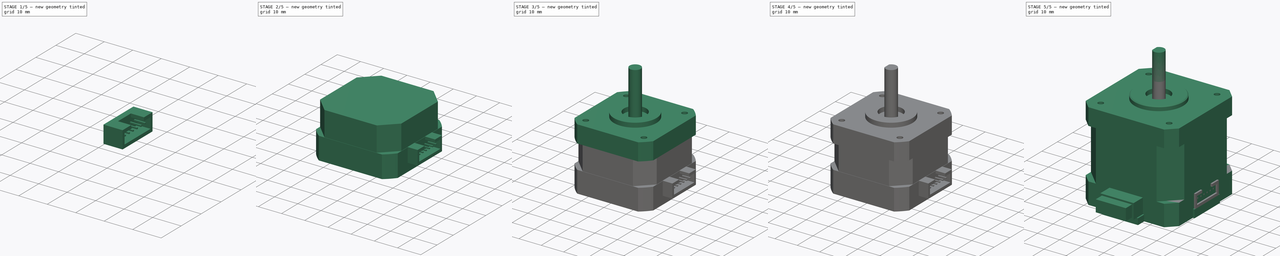
[diagram: build sequence overview — one tinted view per stage of 5, left to right]
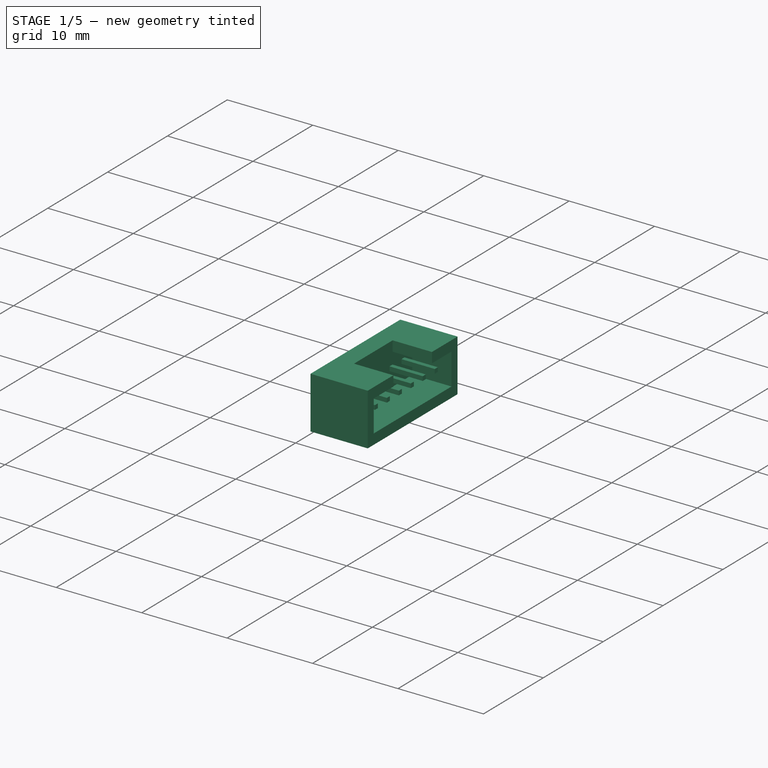
[diagram: stage 1 of 5 — iso view after this stage's code; geometry added in this stage tinted green]
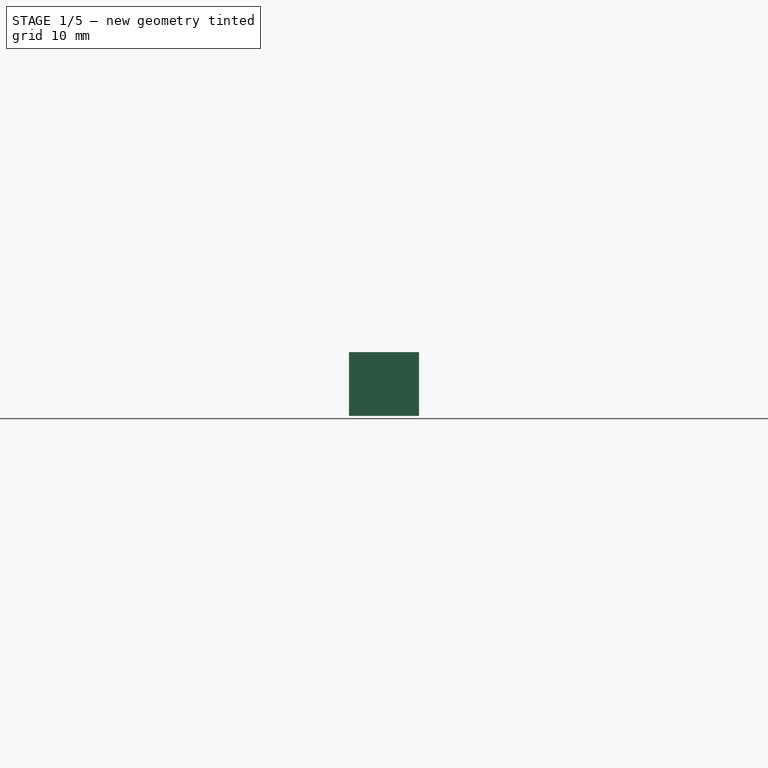
[diagram: stage 1 of 5 — front view after this stage's code; geometry added in this stage tinted green]
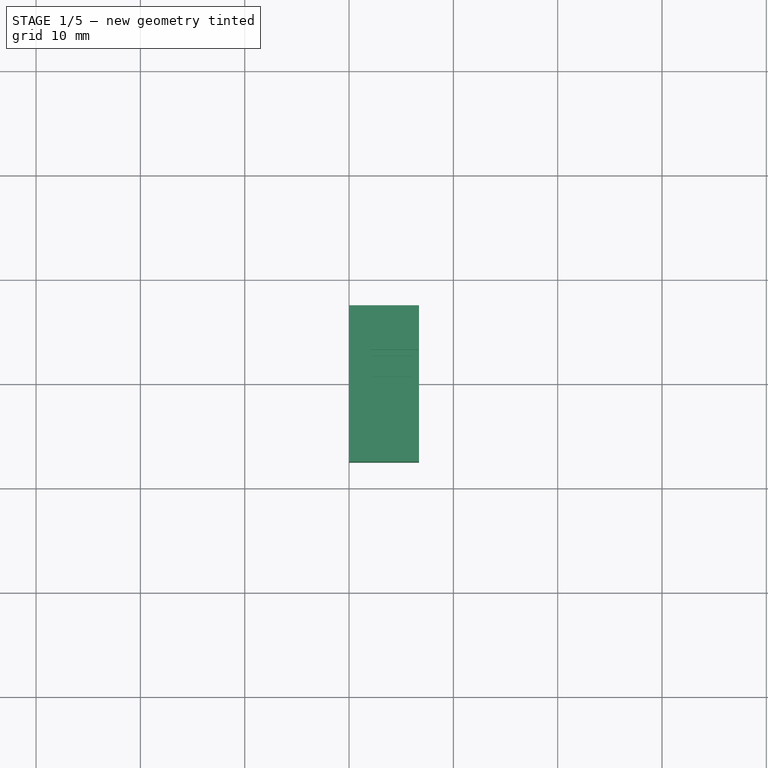
[diagram: stage 1 of 5 — top view after this stage's code; geometry added in this stage tinted green]
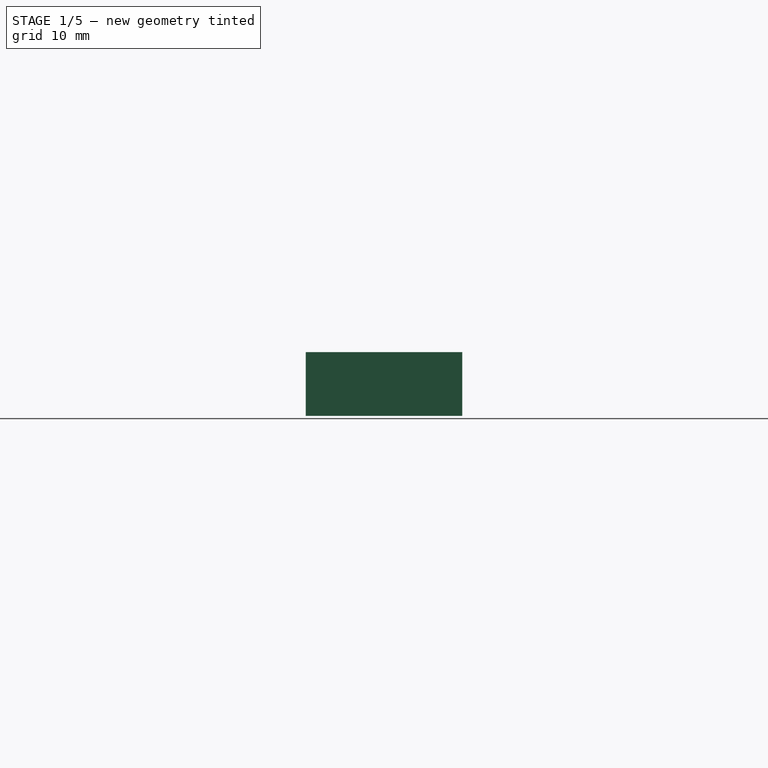
[diagram: stage 1 of 5 — right view after this stage's code; geometry added in this stage tinted green]
FCSTD DOCUMENT  (FreeCAD 0.16R6712 (Git))
Label: NEMA-14_Stepper_Motor_28mm_with_Connector 
License: CreativeCommons Attribution-ShareAlike
LicenseURL: http://creativecommons.org/licenses/by-sa/4.0/
objects: Sketcher::SketchObject×12, PartDesign::Pad×7, PartDesign::Pocket×5, Part::MultiFuse×2, Part::Compound×1, Part::Chamfer×1, Part::Box×1, Part::FeaturePython×1, App::DocumentObjectGroup×1, Part::Feature×1
note: 43 computed .brp shape members not serialized (recipe doc carries the construction recipe); baked Part::Feature solids carry a one-line shape summary decoded from their .brp

FEATURE [Sketcher::SketchObject] Sketch010  label="connector-main-body-sketch"
  Placement = pos=(0,0,0) rot=(0.57735,0.57735,0.57735;2.0944rad)
  sketch-geometry (4):
    g0: LineSegment StartX=-7.5 StartY=3.05 StartZ=0 EndX=7.5 EndY=3.05 EndZ=0
    g1: LineSegment StartX=7.5 StartY=3.05 StartZ=0 EndX=7.5 EndY=-3.05 EndZ=0
    g2: LineSegment StartX=7.5 StartY=-3.05 StartZ=0 EndX=-7.5 EndY=-3.05 EndZ=0
    g3: LineSegment StartX=-7.5 StartY=-3.05 StartZ=0 EndX=-7.5 EndY=3.05 EndZ=0
  constraints (11):
    c: Coincident(g0,g1)
    c: Coincident(g1,g2)
    c: Coincident(g2,g3)
    c: Coincident(g3,g0)
    c: Horizontal(g0)
    c: Horizontal(g2)
    c: Vertical(g1)
    c: Vertical(g3)
    c: Symmetric(g0,g1,g-1)
    c: DistanceX(g0) = 15
    c: DistanceY(g1) = -6.1
FEATURE [PartDesign::Pad] Pad006  label="connector-main-body"
  Length = 6.7
  Length2 = 100
  Placement = pos=(0,0,0) rot=(0.57735,0.57735,0.57735;2.0944rad)
  Sketch = -> Sketch010
  Type = 0
FEATURE [Sketcher::SketchObject] Sketch011  label="connector-cutout-1-sketch"
  Placement = pos=(6.7,0,0) rot=(0.57735,0.57735,0.57735;2.0944rad)
  Support = -> Pad006 [Face6]
  sketch-geometry (8):
    g0: LineSegment StartX=-6.5 StartY=1.85 StartZ=0 EndX=-3.22738 EndY=1.85 EndZ=0
    g1: LineSegment StartX=6.5 StartY=1.85 StartZ=0 EndX=6.5 EndY=-1.85 EndZ=0
    g2: LineSegment StartX=6.5 StartY=-1.85 StartZ=0 EndX=-6.5 EndY=-1.85 EndZ=0
    g3: LineSegment StartX=-6.5 StartY=-1.85 StartZ=0 EndX=-6.5 EndY=1.85 EndZ=0
    g4: LineSegment StartX=-3.22738 StartY=1.85 StartZ=0 EndX=-3.22738 EndY=3.85 EndZ=0
    g5: LineSegment StartX=-3.22738 StartY=3.85 StartZ=0 EndX=3.22738 EndY=3.85 EndZ=0
    g6: LineSegment StartX=3.22738 StartY=3.85 StartZ=0 EndX=3.22738 EndY=1.85 EndZ=0
    g7: LineSegment StartX=3.22738 StartY=1.85 StartZ=0 EndX=6.5 EndY=1.85 EndZ=0
  constraints (21):
    c: Coincident(g7,g1)
    c: Coincident(g1,g2)
    c: Coincident(g2,g3)
    c: Coincident(g3,g0)
    c: Horizontal(g0)
    c: Horizontal(g2)
    c: Vertical(g1)
    c: Vertical(g3)
    c: Symmetric(g0,g1,g-1)
    c: DistanceX(g2) = -13
    c: DistanceY(g1) = -3.7
    c: Vertical(g4)
    c: Coincident(g4,g5)
    c: Horizontal(g5)
    c: Coincident(g5,g6)
    c: Vertical(g6)
    c: Symmetric(g4,g5,g-2)
    c: Coincident(g0,g4)
    c: Coincident(g7,g6)
    c: Tangent(g0,g7)
    c: DistanceY(g6) = -2
FEATURE [PartDesign::Pocket] Pocket004  label="connector-cutout-1"
  Length = 4.6
  Placement = pos=(0,0,0) rot=(0.57735,0.57735,0.57735;2.0944rad)
  Sketch = -> Sketch011
  Type = 0
FEATURE [Part::Box] Box  label="pin-master"
  Height = 0.5
  Length = 4
  Width = 0.5
FEATURE [Part::FeaturePython] Array  label="pins"  # Draft array (typed FeaturePython)
  Angle = 360
  ArrayType = 0
  Axis = (0,0,1)
  Base = -> Box
  Center = (0,0,0)
  IntervalX = (1,0,0)
  IntervalY = (0,2,0)
  IntervalZ = (0,0,1)
  NumberPolar = 1
  NumberX = 1
  NumberY = 6
  NumberZ = 1
  Placement = pos=(2,-5.3,0) rot=(0,0,1;0rad)
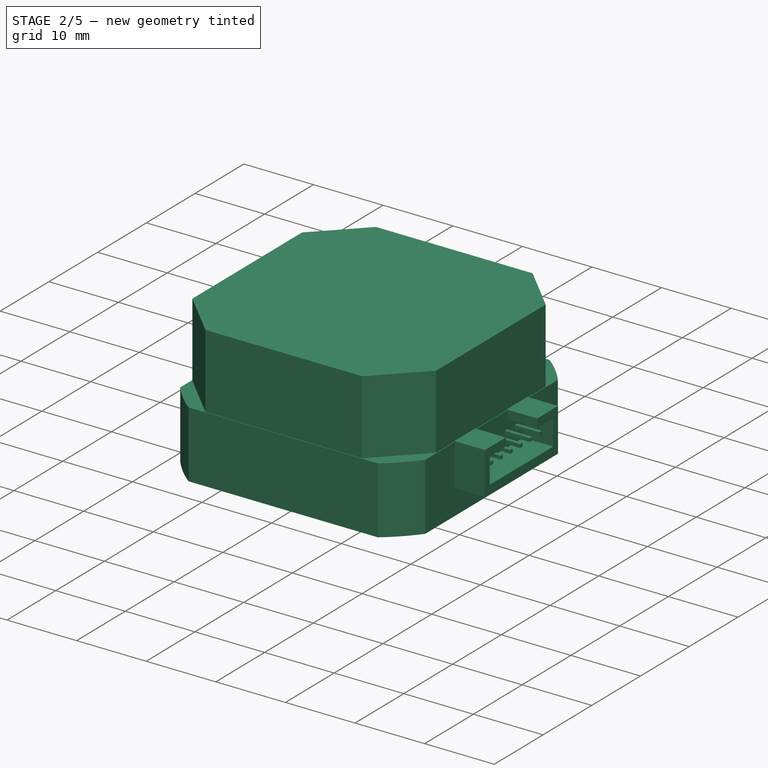
[diagram: stage 2 of 5 — iso view after this stage's code; geometry added in this stage tinted green]
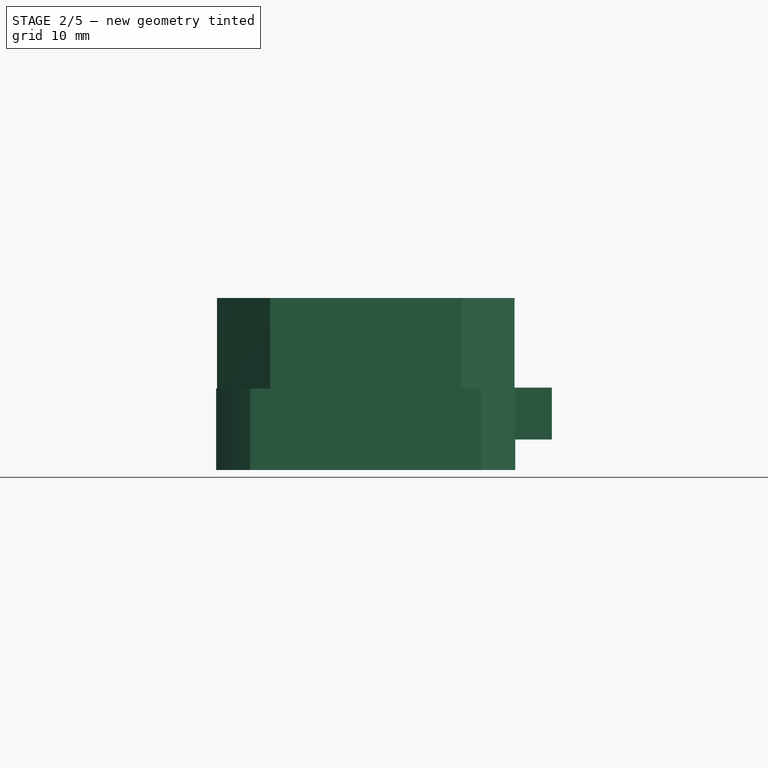
[diagram: stage 2 of 5 — front view after this stage's code; geometry added in this stage tinted green]
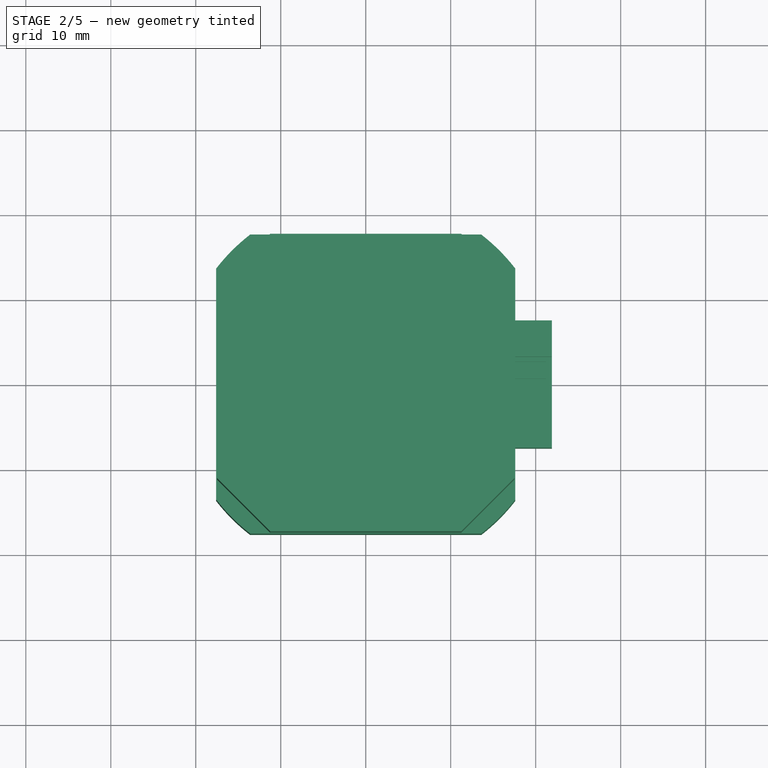
[diagram: stage 2 of 5 — top view after this stage's code; geometry added in this stage tinted green]
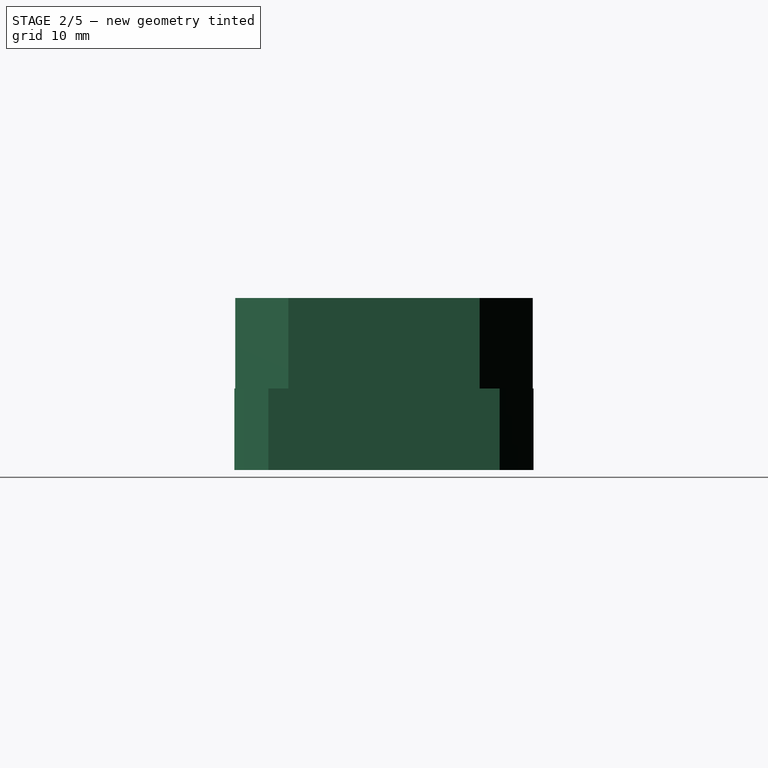
[diagram: stage 2 of 5 — right view after this stage's code; geometry added in this stage tinted green]
FEATURE [Sketcher::SketchObject] Sketch  label="bottom-part-sketch"
  sketch-geometry (8):
    g0: LineSegment StartX=-13.6 StartY=-17.6 StartZ=0 EndX=13.6 EndY=-17.6 EndZ=0
    g1: LineSegment StartX=17.6 StartY=-13.6 StartZ=0 EndX=17.6 EndY=13.6 EndZ=0
    g2: LineSegment StartX=13.6 StartY=17.6 StartZ=0 EndX=-13.6 EndY=17.6 EndZ=0
    g3: LineSegment StartX=-17.6 StartY=13.6 StartZ=0 EndX=-17.6 EndY=-13.6 EndZ=0
    g4: ArcOfCircle CenterX=0 CenterY=0 CenterZ=0 NormalX=0 NormalY=0 NormalZ=1 Radius=22.2423 StartAngle=2.22868 EndAngle=2.4837
    g5: ArcOfCircle CenterX=0 CenterY=0 CenterZ=0 NormalX=0 NormalY=0 NormalZ=1 Radius=22.2423 StartAngle=3.79948 EndAngle=4.0545
    g6: ArcOfCircle CenterX=0 CenterY=0 CenterZ=0 NormalX=0 NormalY=0 NormalZ=1 Radius=22.2423 StartAngle=5.37028 EndAngle=5.6253
    g7: ArcOfCircle CenterX=0 CenterY=0 CenterZ=0 NormalX=0 NormalY=0 NormalZ=1 Radius=22.2423 StartAngle=0.657889 EndAngle=0.912908
  constraints (29):
    c: Horizontal(g0)
    c: Horizontal(g2)
    c: Vertical(g1)
    c: Vertical(g3)
    c: PointOnObject(g0,g4)
    c: PointOnObject(g0,g4)
    c: PointOnObject(g1,g4)
    c: PointOnObject(g1,g4)
    c: Coincident(g4,g2)
    c: Coincident(g7,g2)
    c: Equal(g4,g5)
    c: Coincident(g4,g3)
    c: Coincident(g5,g3)
    c: Coincident(g4,g5)
    c: Equal(g5,g6)
    c: PointOnObject(g5,g0)
    c: PointOnObject(g6,g0)
    c: Coincident(g5,g6)
    c: Equal(g6,g7)
    c: PointOnObject(g6,g1)
    c: PointOnObject(g7,g1)
    c: Coincident(g6,g7)
    c: Equal(g3,g2)
    c: Equal(g2,g1)
    c: Equal(g1,g0)
    c: DistanceX(g3,g1) = 35.2
    c: DistanceX(g2) = -27.2
    c: DistanceY(g2) = 17.6
    c: DistanceX(g1) = 17.6
FEATURE [PartDesign::Pad] Pad  label="bottom-slice"
  Length = 9.6
  Length2 = 100
  Sketch = -> Sketch
  Type = 0
FEATURE [Sketcher::SketchObject] Sketch001  label="middle-part-sketch"
  ExternalGeometry = -> [Pad]
  Placement = pos=(0,0,9.6) rot=(0,0,1;0rad)
  Support = -> Pad [Face10]
  sketch-geometry (9):
    g0: LineSegment StartX=-17.5 StartY=-11.25 StartZ=0 EndX=-17.5 EndY=11.25 EndZ=0
    g1: LineSegment StartX=-17.5 StartY=11.25 StartZ=0 EndX=-11.25 EndY=17.5 EndZ=0
    g2: LineSegment StartX=-11.25 StartY=17.5 StartZ=0 EndX=11.25 EndY=17.5 EndZ=0
    g3: LineSegment [constr] StartX=-17.5 StartY=11.25 StartZ=0 EndX=-5.5 EndY=11.25 EndZ=0
    g4: LineSegment StartX=11.25 StartY=17.5 StartZ=0 EndX=17.5 EndY=11.25 EndZ=0
    g5: LineSegment StartX=17.5 StartY=11.25 StartZ=0 EndX=17.5 EndY=-11.25 EndZ=0
    g6: LineSegment StartX=17.5 StartY=-11.25 StartZ=0 EndX=11.25 EndY=-17.5 EndZ=0
    g7: LineSegment StartX=11.25 StartY=-17.5 StartZ=0 EndX=-11.25 EndY=-17.5 EndZ=0
    g8: LineSegment StartX=-11.25 StartY=-17.5 StartZ=0 EndX=-17.5 EndY=-11.25 EndZ=0
  constraints (24):
    c: Coincident(g0,g1)
    c: Coincident(g1,g2)
    c: Horizontal(g2)
    c: Symmetric(g0,g0,g-1)
    c: Symmetric(g1,g2,g-2)
    c: Horizontal(g3)
    c: Coincident(g3,g0)
    c: DistanceX(g3) = 12
    c: Angle(g3,g1) = 0.785398
    c: DistanceY(g0) = 22.5
    c: Coincident(g4,g5)
    c: Vertical(g5)
    c: Coincident(g5,g6)
    c: Coincident(g6,g7)
    c: Horizontal(g7)
    c: Coincident(g7,g8)
    c: Coincident(g8,g0)
    c: Symmetric(g1,g7,g-1)
    c: Coincident(g4,g2)
    c: Symmetric(g4,g0,g-2)
    c: Symmetric(g0,g5,g-2)
    c: Symmetric(g6,g7,g-2)
    c: DistanceX(g-1,g0) = -17.5
    c: Equal(g0,g2)
FEATURE [PartDesign::Pad] Pad001  label="middle-slice"
  Length = 10.65
  Length2 = 100
  Sketch = -> Sketch001
  Type = 0
FEATURE [App::DocumentObjectGroup] Group  label="connector-src"
  Group = -> [Pad006,Pocket004,Array]
FEATURE [Part::MultiFuse] Fusion  label="connector"
  Placement = pos=(15.2,0,6.65) rot=(0,0,1;0rad)
  Shapes = -> [Pocket004,Array]
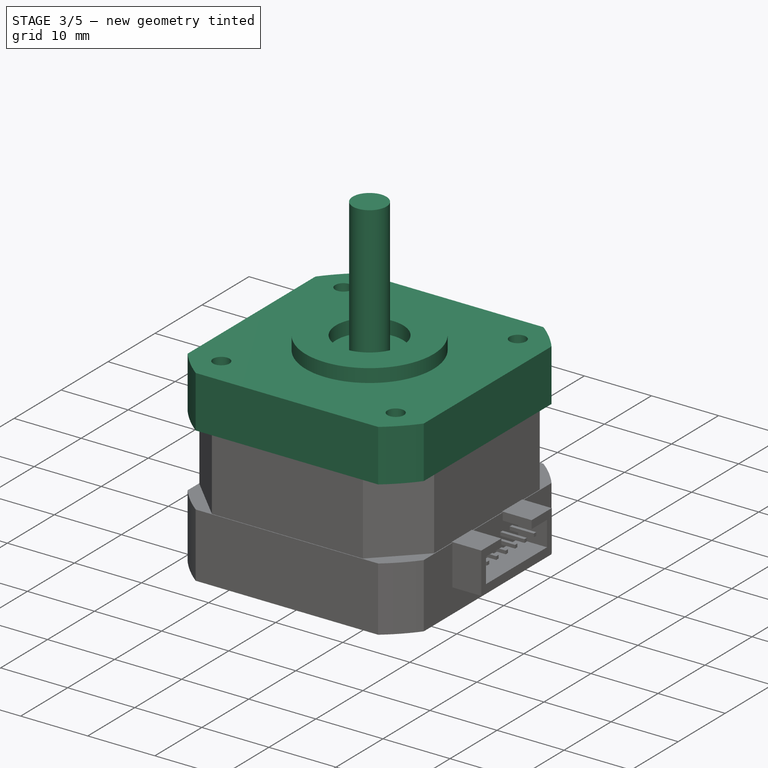
[diagram: stage 3 of 5 — iso view after this stage's code; geometry added in this stage tinted green]
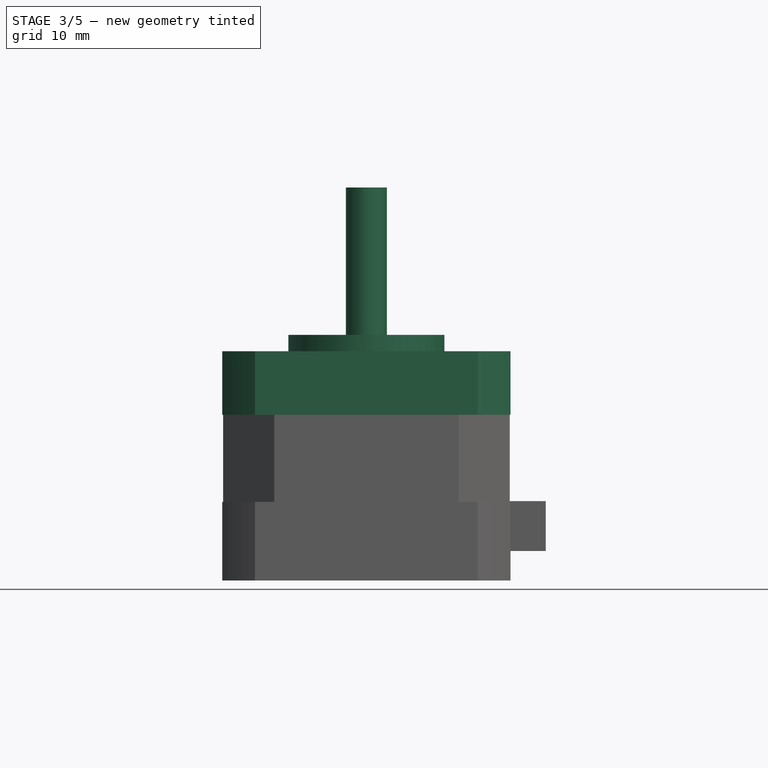
[diagram: stage 3 of 5 — front view after this stage's code; geometry added in this stage tinted green]
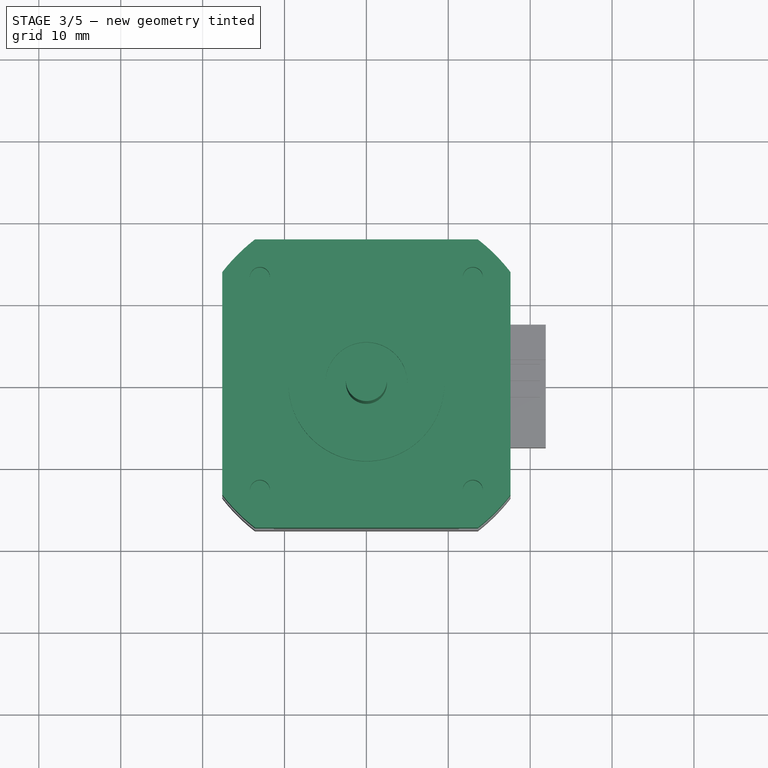
[diagram: stage 3 of 5 — top view after this stage's code; geometry added in this stage tinted green]
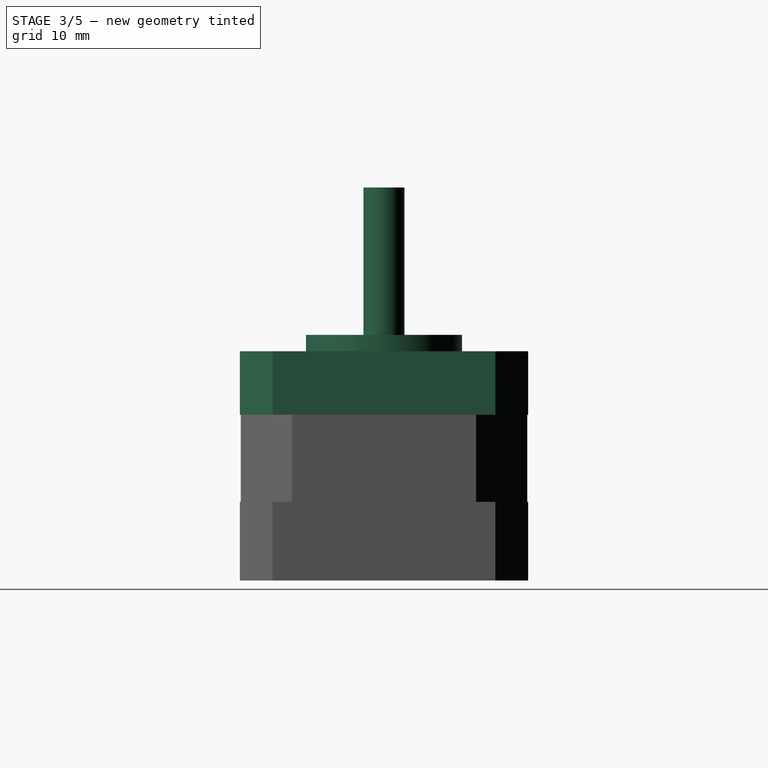
[diagram: stage 3 of 5 — right view after this stage's code; geometry added in this stage tinted green]
FEATURE [Sketcher::SketchObject] Sketch002  label="top-part-sketch"
  Placement = pos=(0,0,20.25) rot=(0,0,1;0rad)
  Support = -> Pad001 [Face19]
  sketch-geometry (8):
    g0: LineSegment StartX=-13.6 StartY=-17.6 StartZ=0 EndX=13.6 EndY=-17.6 EndZ=0
    g1: LineSegment StartX=17.6 StartY=-13.6 StartZ=0 EndX=17.6 EndY=13.6 EndZ=0
    g2: LineSegment StartX=13.6 StartY=17.6 StartZ=0 EndX=-13.6 EndY=17.6 EndZ=0
    g3: LineSegment StartX=-17.6 StartY=13.6 StartZ=0 EndX=-17.6 EndY=-13.6 EndZ=0
    g4: ArcOfCircle CenterX=0 CenterY=0 CenterZ=0 NormalX=0 NormalY=0 NormalZ=1 Radius=22.2423 StartAngle=2.22868 EndAngle=2.4837
    g5: ArcOfCircle CenterX=0 CenterY=0 CenterZ=0 NormalX=0 NormalY=0 NormalZ=1 Radius=22.2423 StartAngle=3.79948 EndAngle=4.0545
    g6: ArcOfCircle CenterX=0 CenterY=0 CenterZ=0 NormalX=0 NormalY=0 NormalZ=1 Radius=22.2423 StartAngle=5.37028 EndAngle=5.6253
    g7: ArcOfCircle CenterX=0 CenterY=0 CenterZ=0 NormalX=0 NormalY=0 NormalZ=1 Radius=22.2423 StartAngle=0.657889 EndAngle=0.912908
  constraints (29):
    c: Horizontal(g0)
    c: Horizontal(g2)
    c: Vertical(g1)
    c: Vertical(g3)
    c: PointOnObject(g0,g4)
    c: PointOnObject(g0,g4)
    c: PointOnObject(g1,g4)
    c: PointOnObject(g1,g4)
    c: Coincident(g4,g2)
    c: Coincident(g7,g2)
    c: Equal(g4,g5)
    c: Coincident(g4,g3)
    c: Coincident(g5,g3)
    c: Coincident(g4,g5)
    c: Equal(g5,g6)
    c: PointOnObject(g5,g0)
    c: PointOnObject(g6,g0)
    c: Coincident(g5,g6)
    c: Equal(g6,g7)
    c: PointOnObject(g6,g1)
    c: PointOnObject(g7,g1)
    c: Coincident(g6,g7)
    c: Equal(g3,g2)
    c: Equal(g2,g1)
    c: Equal(g1,g0)
    c: DistanceX(g3,g1) = 35.2
    c: DistanceX(g2) = -27.2
    c: DistanceY(g2) = 17.6
    c: DistanceX(g1) = 17.6
FEATURE [PartDesign::Pad] Pad002  label="top-slice"
  Length = 7.75
  Length2 = 100
  Sketch = -> Sketch002
  Type = 0
FEATURE [Sketcher::SketchObject] Sketch003  label="top-drills-sketch"
  Placement = pos=(0,0,28) rot=(0,0,1;0rad)
  Support = -> Pad002 [Face28]
  sketch-geometry (6):
    g0: LineSegment [constr] StartX=-13 StartY=13 StartZ=0 EndX=13 EndY=13 EndZ=0
    g1: LineSegment [constr] StartX=-13 StartY=13 StartZ=0 EndX=-13 EndY=-13 EndZ=0
    g2: Circle CenterX=-13 CenterY=13 CenterZ=0 NormalX=0 NormalY=0 NormalZ=1 Radius=1.225
    g3: Circle CenterX=13 CenterY=13 CenterZ=0 NormalX=0 NormalY=0 NormalZ=1 Radius=1.225
    g4: Circle CenterX=13 CenterY=-13 CenterZ=0 NormalX=0 NormalY=0 NormalZ=1 Radius=1.225
    g5: Circle CenterX=-13 CenterY=-13 CenterZ=0 NormalX=0 NormalY=0 NormalZ=1 Radius=1.225
  constraints (15):
    c: Horizontal(g0)
    c: Symmetric(g0,g0,g-2)
    c: Vertical(g1)
    c: Symmetric(g1,g1,g-1)
    c: Equal(g0,g1)
    c: DistanceX(g0) = 26
    c: Coincident(g1,g0)
    c: Radius(g2) = 1.225
    c: Coincident(g2,g0)
    c: Equal(g5,g4)
    c: Equal(g4,g3)
    c: Equal(g3,g2)
    c: Coincident(g3,g0)
    c: Coincident(g5,g1)
    c: Symmetric(g4,g1,g-2)
FEATURE [PartDesign::Pocket] Pocket  label="top-drills"
  Length = 4.5
  Sketch = -> Sketch003
  Type = 0
FEATURE [Sketcher::SketchObject] Sketch004  label="shaft-base-sketch"
  Placement = pos=(0,0,28) rot=(0,0,1;0rad)
  Support = -> Pocket [Face28]
  sketch-geometry (2):
    g0: Circle CenterX=0 CenterY=0 CenterZ=0 NormalX=0 NormalY=0 NormalZ=1 Radius=9.525
    g1: Circle CenterX=0 CenterY=0 CenterZ=0 NormalX=0 NormalY=0 NormalZ=1 Radius=5
  constraints (4):
    c: Coincident(g0,g-1)
    c: Radius(g0) = 9.525
    c: Coincident(g1,g-1)
    c: Radius(g1) = 5
FEATURE [PartDesign::Pad] Pad003  label="shaft-base"
  Length = 2
  Length2 = 100
  Sketch = -> Sketch004
  Type = 0
FEATURE [Sketcher::SketchObject] Sketch005  label="shaft-1-sketch"
  Placement = pos=(0,0,28) rot=(0,0,1;0rad)
  Support = -> Pad003 [Face40]
  sketch-geometry (1):
    g0: Circle CenterX=0 CenterY=0 CenterZ=0 NormalX=0 NormalY=0 NormalZ=1 Radius=2.5
  constraints (2):
    c: Coincident(g0,g-1)
    c: Radius(g0) = 2.5
FEATURE [PartDesign::Pad] Pad004  label="shaft-1"
  Length = 20
  Length2 = 100
  Sketch = -> Sketch005
  Type = 0
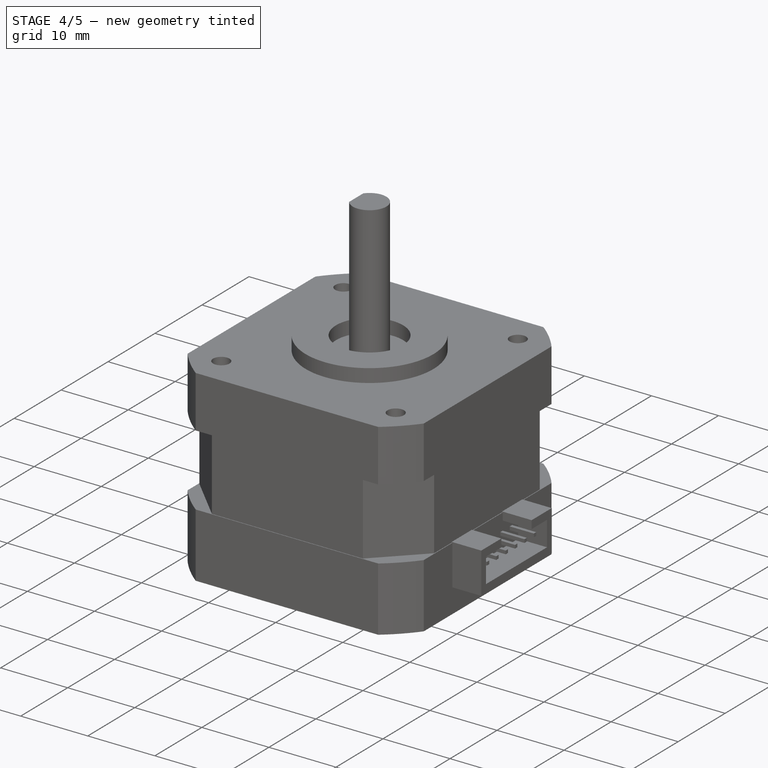
[diagram: stage 4 of 5 — iso view after this stage's code; geometry added in this stage tinted green]
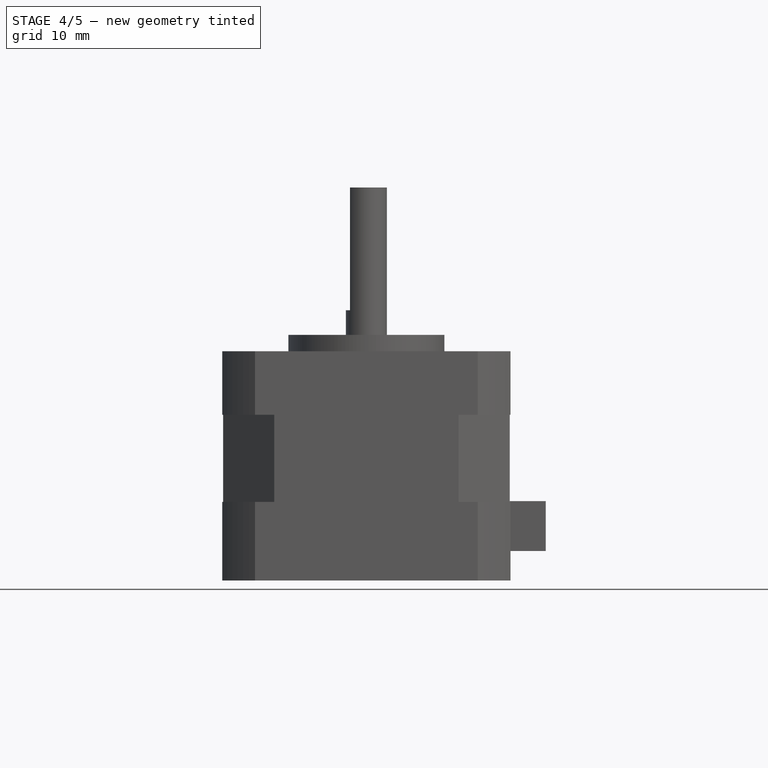
[diagram: stage 4 of 5 — front view after this stage's code; geometry added in this stage tinted green]
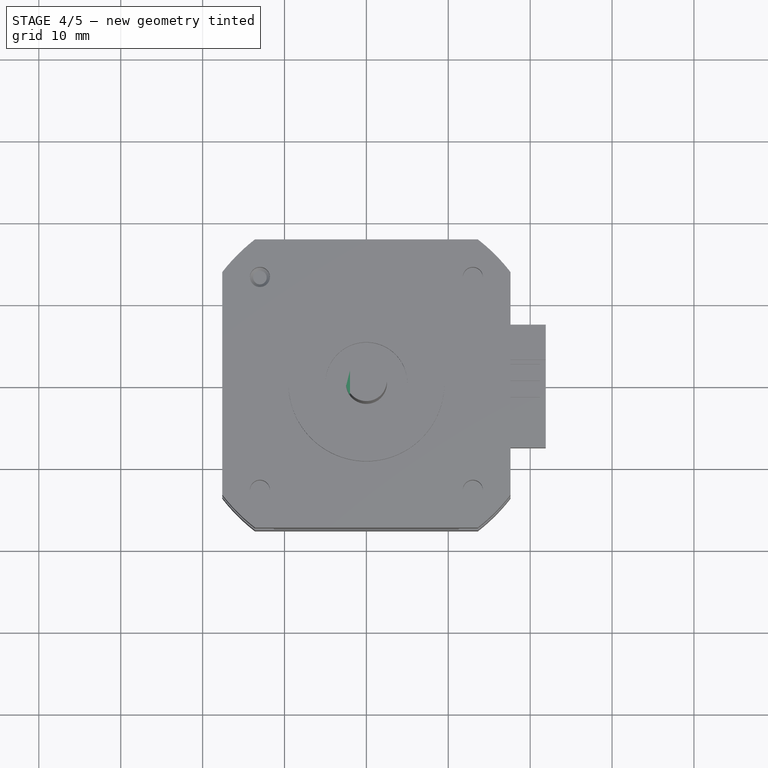
[diagram: stage 4 of 5 — top view after this stage's code; geometry added in this stage tinted green]
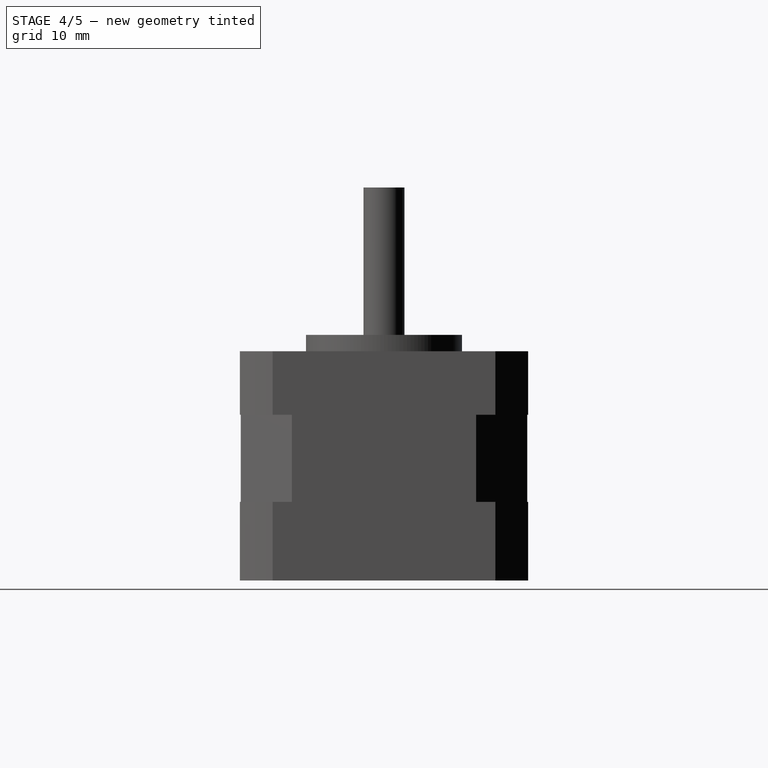
[diagram: stage 4 of 5 — right view after this stage's code; geometry added in this stage tinted green]
FEATURE [Sketcher::SketchObject] Sketch006  label="shaft-2-sketch"
  ExternalGeometry = -> [Pad004]
  Placement = pos=(0,0,48) rot=(0,0,1;0rad)
  Support = -> Pad004 [Face42]
  sketch-geometry (4):
    g0: LineSegment StartX=-2 StartY=1.5 StartZ=0 EndX=-2 EndY=-1.5 EndZ=0
    g1: LineSegment StartX=-2 StartY=1.5 StartZ=0 EndX=-2.5 EndY=1.5 EndZ=0
    g2: LineSegment StartX=-2.5 StartY=1.5 StartZ=0 EndX=-2.5 EndY=-1.5 EndZ=0
    g3: LineSegment StartX=-2.5 StartY=-1.5 StartZ=0 EndX=-2 EndY=-1.5 EndZ=0
  constraints (12):
    c: Vertical(g0)
    c: Symmetric(g0,g0,g-1)
    c: PointOnObject(g0,g-3)
    c: Coincident(g1,g2)
    c: Coincident(g2,g3)
    c: Horizontal(g3)
    c: Horizontal(g1)
    c: Coincident(g1,g0)
    c: Coincident(g0,g3)
    c: Vertical(g2)
    c: Tangent(g2,g-3)
    c: DistanceX(g1) = -0.5
FEATURE [PartDesign::Pocket] Pocket001  label="shaft-2"
  Length = 15
  Sketch = -> Sketch006
  Type = 0
FEATURE [Sketcher::SketchObject] Sketch007  label="bottom-drills-sketch"
  Placement = pos=(0,0,0) rot=(1,0,0;3.14159rad)
  Support = -> Pocket001 [Face4]
  sketch-geometry (7):
    g0: LineSegment [constr] StartX=-13 StartY=13 StartZ=0 EndX=13 EndY=13 EndZ=0
    g1: LineSegment [constr] StartX=-13 StartY=13 StartZ=0 EndX=-13 EndY=-13 EndZ=0
    g2: Circle CenterX=-13 CenterY=13 CenterZ=0 NormalX=0 NormalY=0 NormalZ=1 Radius=1.5
    g3: Circle CenterX=13 CenterY=13 CenterZ=0 NormalX=0 NormalY=0 NormalZ=1 Radius=1.5
    g4: Circle CenterX=13 CenterY=-13 CenterZ=0 NormalX=0 NormalY=0 NormalZ=1 Radius=1.5
    g5: Circle CenterX=-13 CenterY=-13 CenterZ=0 NormalX=0 NormalY=0 NormalZ=1 Radius=1.5
    g6: Circle CenterX=0 CenterY=0 CenterZ=0 NormalX=0 NormalY=0 NormalZ=1 Radius=4.5
  constraints (17):
    c: Horizontal(g0)
    c: Vertical(g1)
    c: Coincident(g1,g0)
    c: Symmetric(g0,g0,g-2)
    c: Symmetric(g0,g1,g-1)
    c: Equal(g1,g0)
    c: DistanceX(g0) = 26
    c: Coincident(g2,g0)
    c: Radius(g2) = 1.5
    c: Coincident(g5,g1)
    c: Coincident(g0,g3)
    c: Equal(g3,g2)
    c: Equal(g2,g5)
    c: Equal(g5,g4)
    c: Symmetric(g4,g1,g-2)
    c: Coincident(g6,g-1)
    c: Radius(g6) = 4.5
FEATURE [PartDesign::Pocket] Pocket002  label="bottom-drills"
  Length = 3
  Sketch = -> Sketch007
  Type = 0
FEATURE [Part::Chamfer] Chamfer  label="motor-no-connector"
  Base = -> Pocket002
  Edges = 1 edges r=0.4: [Edge102]
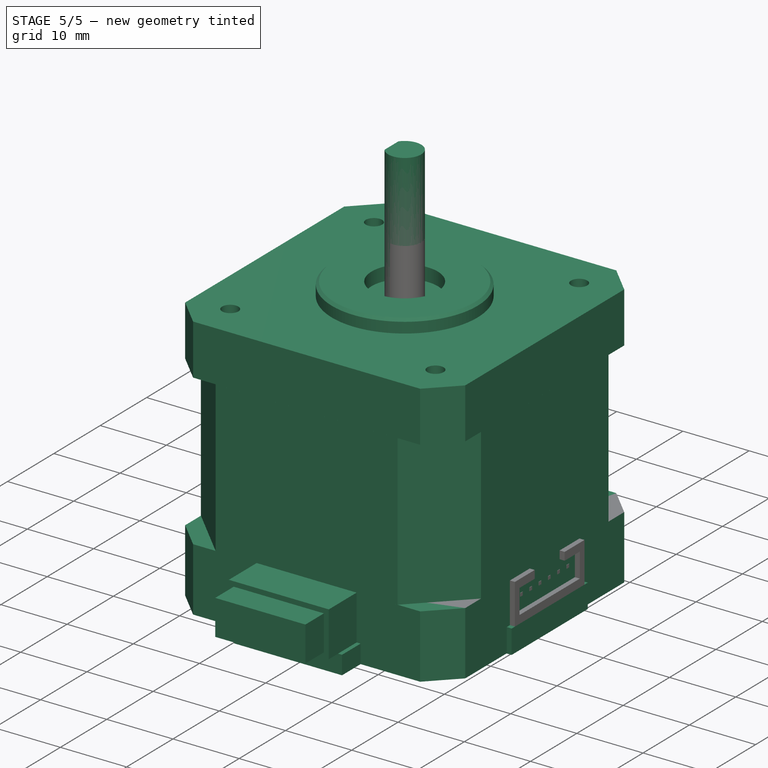
[diagram: stage 5 of 5 — iso view after this stage's code; geometry added in this stage tinted green]
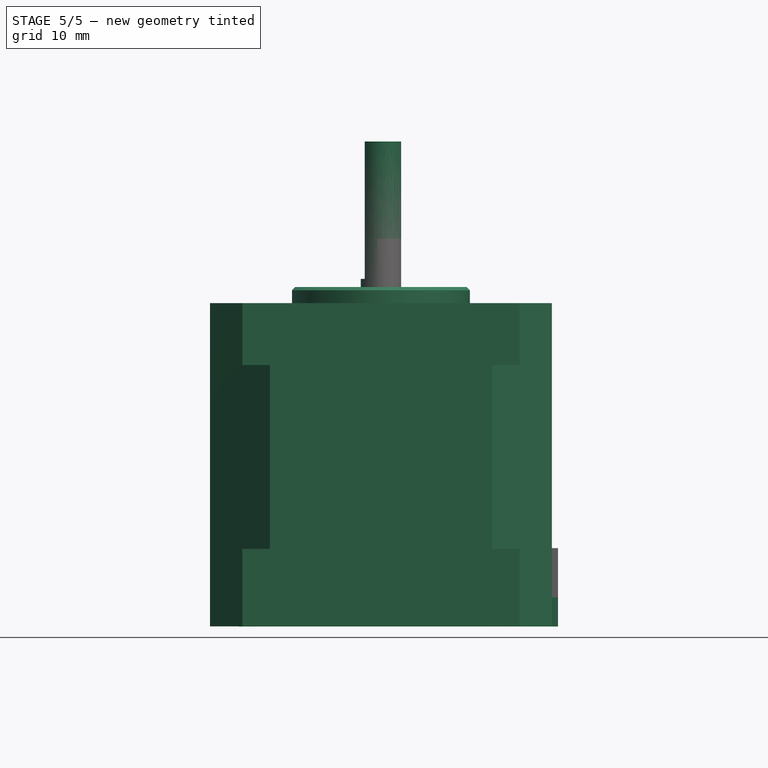
[diagram: stage 5 of 5 — front view after this stage's code; geometry added in this stage tinted green]
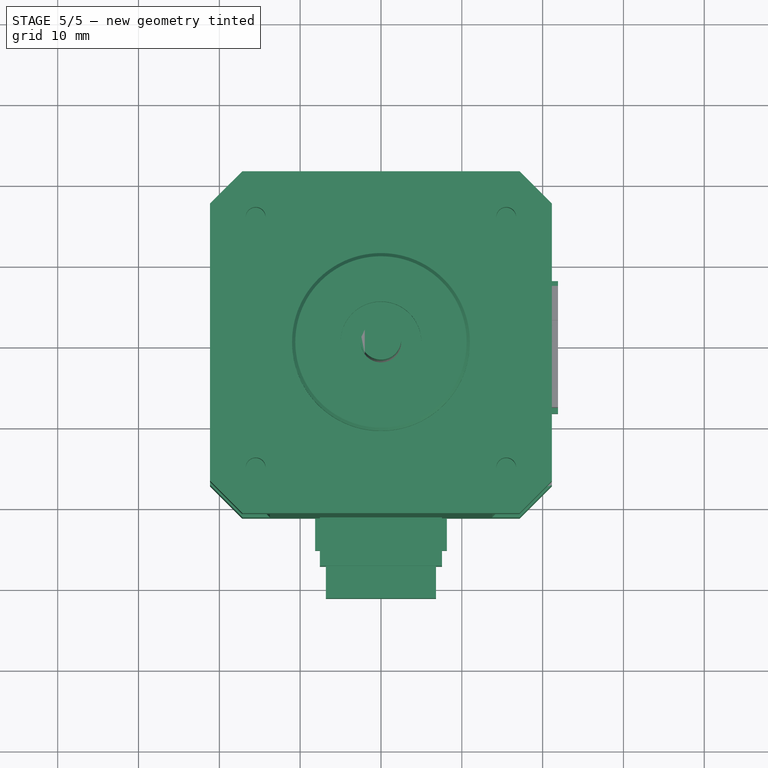
[diagram: stage 5 of 5 — top view after this stage's code; geometry added in this stage tinted green]
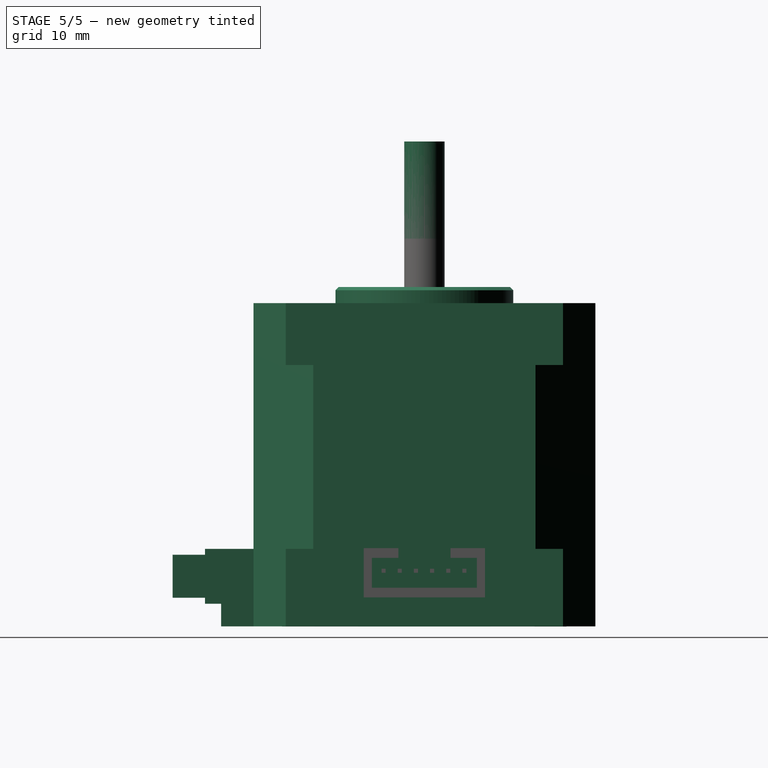
[diagram: stage 5 of 5 — right view after this stage's code; geometry added in this stage tinted green]
FEATURE [Part::Compound] Compound  label="extruder-motor"
  Placement = pos=(109.65,-100.5,-442) rot=(0,0,1;0rad)
FEATURE [Sketcher::SketchObject] Sketch008  label="connector-support-sketch"
  ExternalGeometry = -> [Chamfer]
  Placement = pos=(0,0,0) rot=(1,0,0;3.14159rad)
  Support = -> Chamfer [Face42]
  sketch-geometry (4):
    g0: LineSegment StartX=17.6 StartY=8.2 StartZ=0 EndX=21.9 EndY=8.2 EndZ=0
    g1: LineSegment StartX=21.9 StartY=8.2 StartZ=0 EndX=21.9 EndY=-8.2 EndZ=0
    g2: LineSegment StartX=21.9 StartY=-8.2 StartZ=0 EndX=17.6 EndY=-8.2 EndZ=0
    g3: LineSegment StartX=17.6 StartY=-8.2 StartZ=0 EndX=17.6 EndY=8.2 EndZ=0
  constraints (12):
    c: Coincident(g0,g1)
    c: Coincident(g1,g2)
    c: Coincident(g2,g3)
    c: Coincident(g3,g0)
    c: Horizontal(g0)
    c: Horizontal(g2)
    c: Vertical(g1)
    c: Vertical(g3)
    c: Symmetric(g0,g2,g-1)
    c: DistanceY(g1) = -16.4
    c: DistanceX(g0) = 4.3
    c: PointOnObject(g0,g-4)
FEATURE [PartDesign::Pad] Pad005  label="connector-motor"
  Length = 3.6
  Length2 = 100
  Reversed = true
  Sketch = -> Sketch008
  Type = 0
FEATURE [Sketcher::SketchObject] Sketch009  label="connector-slot-sketch"
  ExternalGeometry = -> [Pad005]
  Placement = pos=(17.6,0,0) rot=(0.57735,0.57735,0.57735;2.0944rad)
  Support = -> Pad005 [Face6]
  sketch-geometry (4):
    g0: LineSegment StartX=-8.2 StartY=9.6 StartZ=0 EndX=8.2 EndY=9.6 EndZ=0
    g1: LineSegment StartX=8.2 StartY=9.6 StartZ=0 EndX=8.2 EndY=3.6 EndZ=0
    g2: LineSegment StartX=8.2 StartY=3.6 StartZ=0 EndX=-8.2 EndY=3.6 EndZ=0
    g3: LineSegment StartX=-8.2 StartY=3.6 StartZ=0 EndX=-8.2 EndY=9.6 EndZ=0
  constraints (10):
    c: Coincident(g0,g1)
    c: Coincident(g1,g2)
    c: Coincident(g2,g3)
    c: Coincident(g3,g0)
    c: Horizontal(g0)
    c: Horizontal(g2)
    c: Vertical(g1)
    c: Vertical(g3)
    c: PointOnObject(g0,g-3)
    c: Coincident(g1,g-4)
FEATURE [PartDesign::Pocket] Pocket003  label="connector-slot"
  Length = 1
  Sketch = -> Sketch009
  Type = 0
FEATURE [Part::MultiFuse] Fusion001  label="Motor-with-connector"
  Shapes = -> [Pocket003,Fusion]
FEATURE [Part::Feature] Fusion001_solid  label="Motor-with-connector-final"
  shape: bbox 39.5 x 35.2 x 48 mm, 114 faces (baked)
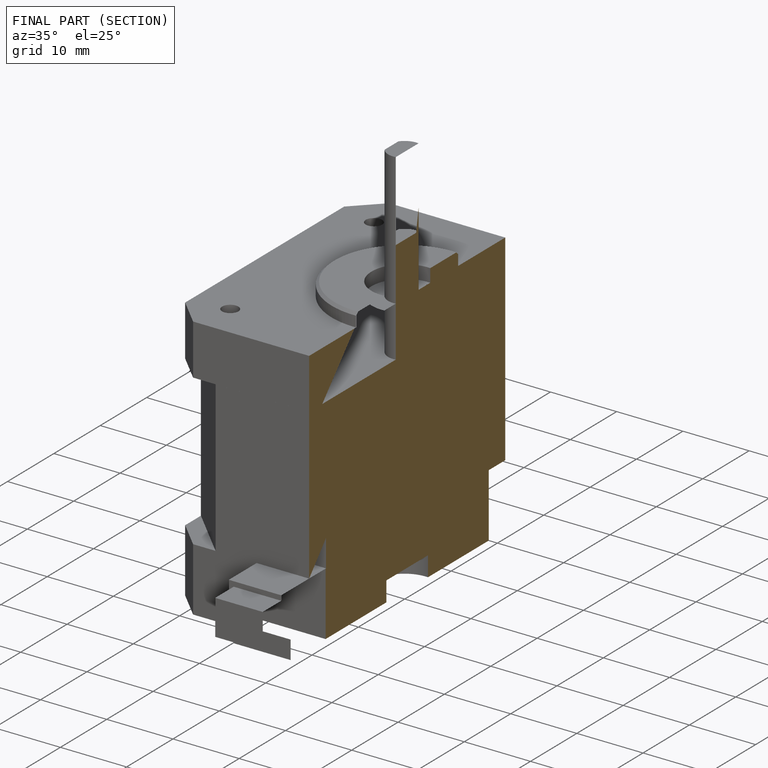
[diagram: finished part — half-section view (interior)]
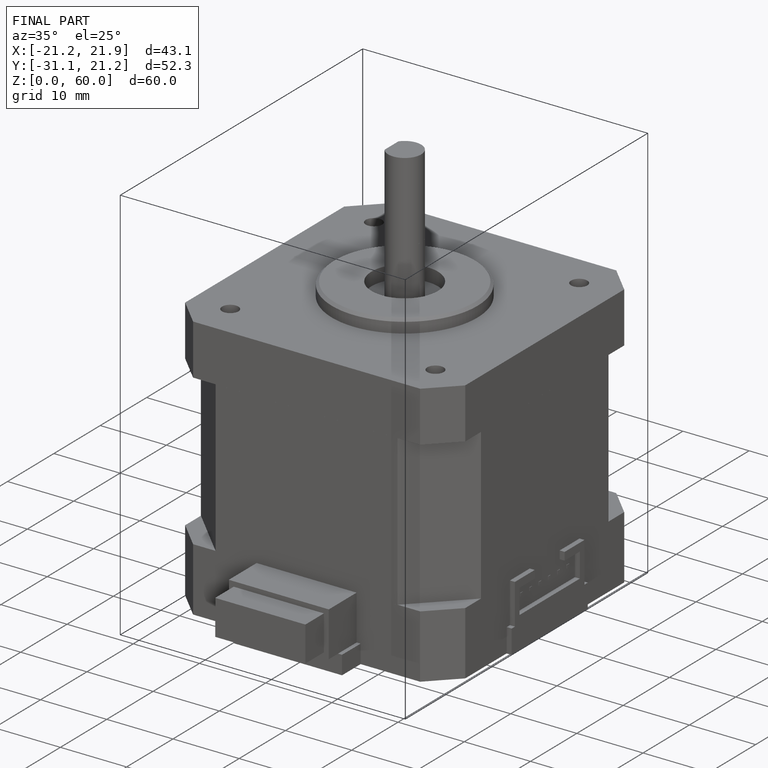
[diagram: finished part — iso view with bounding-box wireframe]
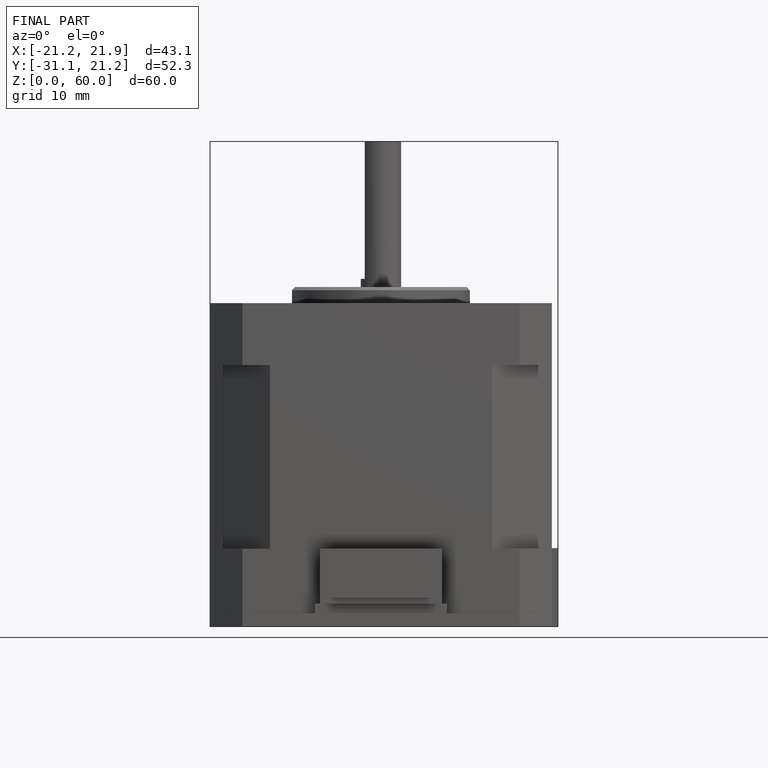
[diagram: finished part — front view with bounding-box wireframe]
